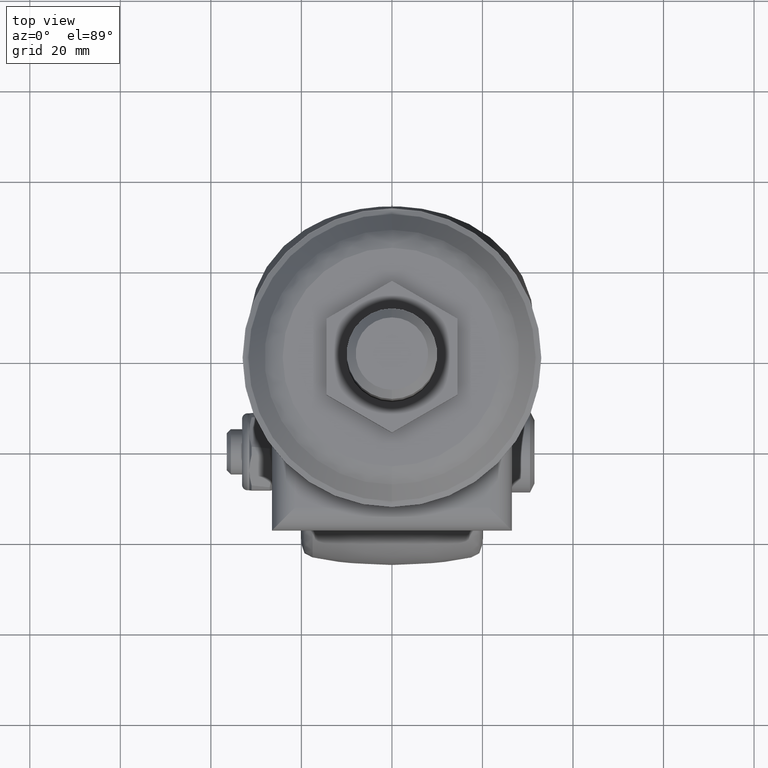
[diagram: clean part render]
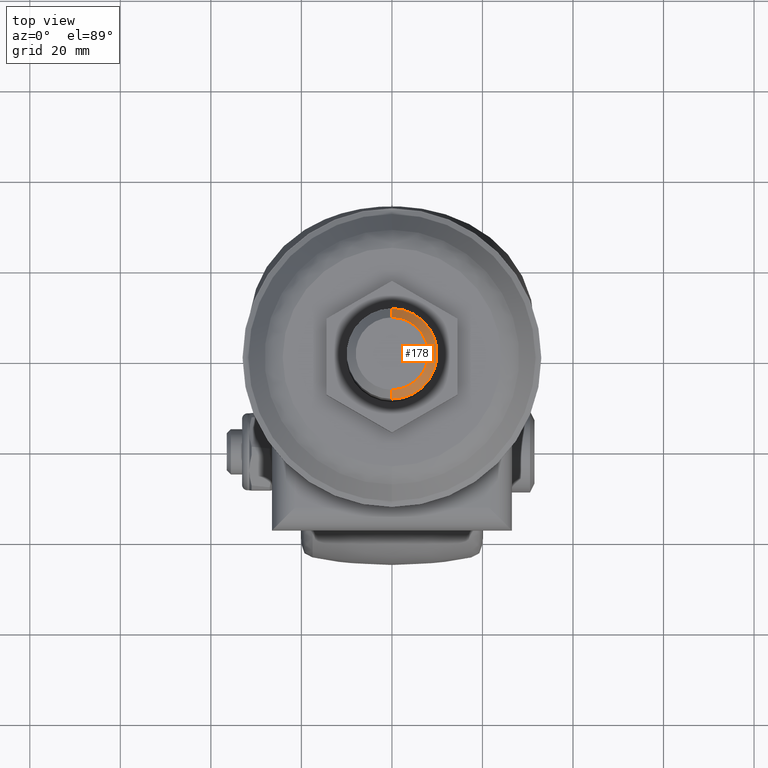
[diagram: same view with one face highlighted and labeled with its STEP entity id]
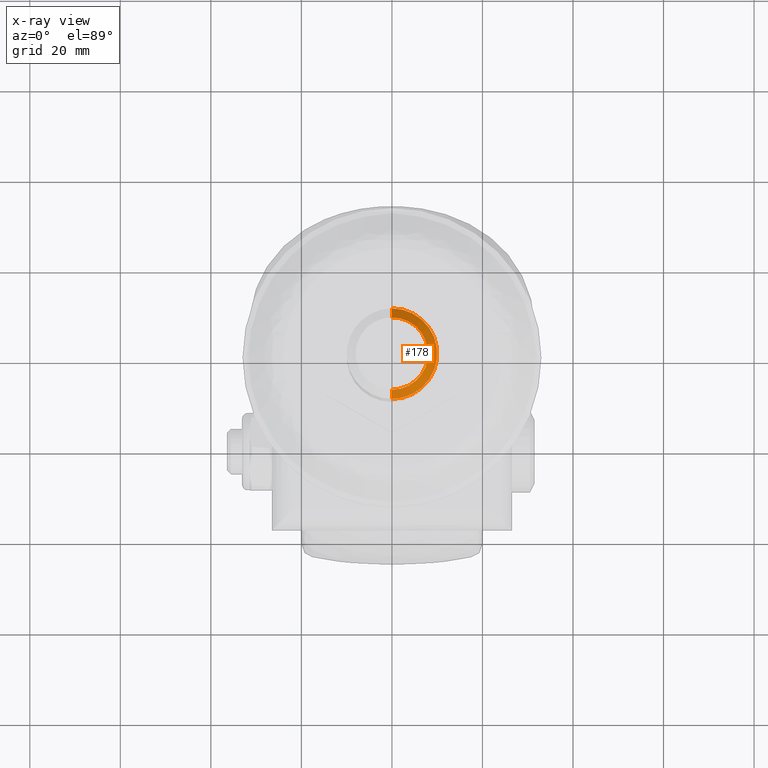
[diagram: x-ray of the same camera — body ghosted, the highlighted face saturated]
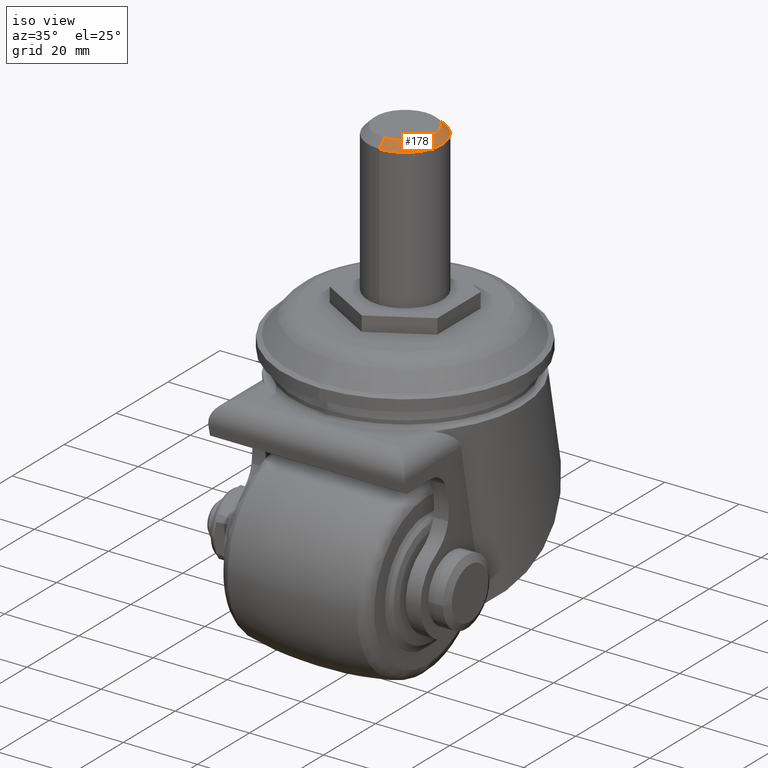
[diagram: same view with one face highlighted and labeled with its STEP entity id]
A machine part, top view. The second image highlights one B-rep face of the part: STEP entity #178.
The next image is the same camera in x-ray: the body ghosted, the highlighted face saturated — about 0% of this face is hidden behind the body in this view.
A second angle (iso view) of the same face is appended — the face is thin or edge-on in the first view.
In plain terms, the highlighted face is a freeform B-spline surface patch.
Its self-contained STEP definition (entity closure, byte-faithful):
#178=ADVANCED_FACE('',(#950),#949,.T.);
#949=( BOUNDED_SURFACE() B_SPLINE_SURFACE( 2,1,((#2363,#2364),(#2365,#2366),(#2367,#2368),(#2369,#2370),(#2371,#2372)), .UNSPECIFIED.,.F.,.F.,.F.) B_SPLINE_SURFACE_WITH_KNOTS((3,2,3),(2,2),(0.00000000000E+00,5.00000000000E-01,1.00000000000E+00),(0.00000000000E+00,1.00000000000E+00), .UNSPECIFIED. ) GEOMETRIC_REPRESENTATION_ITEM() RATIONAL_B_SPLINE_SURFACE(((1.00000000000E+00,1.00000000000E+00),(7.07106781187E-01,7.07106781187E-01),(1.00000000000E+00,1.00000000000E+00),(7.07106781187E-01,7.07106781187E-01),(1.00000000000E+00,1.00000000000E+00))) REPRESENTATION_ITEM('') SURFACE() );
#950=FACE_OUTER_BOUND('',#2373,.T.);
#2363=CARTESIAN_POINT('',(0.00000000000E+00,5.19999871927E+01,-5.23598743740E-05));
#2364=CARTESIAN_POINT('',(1.73191142559E-15,3.78578571778E+01,-1.41421823748E+01));
#2365=CARTESIAN_POINT('',(0.00000000000E+00,5.19999871927E+01,-5.23598743740E-05));
#2366=CARTESIAN_POINT('',(1.41421300149E+01,3.78578571778E+01,-1.41421823748E+01));
#2367=CARTESIAN_POINT('',(0.00000000000E+00,5.19999871927E+01,-5.23598743740E-05));
#2368=CARTESIAN_POINT('',(1.41421300149E+01,3.78578571778E+01,-5.23598743732E-05));
#2369=CARTESIAN_POINT('',(0.00000000000E+00,5.19999871927E+01,-5.23598743740E-05));
#2370=CARTESIAN_POINT('',(1.41421300149E+01,3.78578571778E+01,1.41420776551E+01));
#2371=CARTESIAN_POINT('',(0.00000000000E+00,5.19999871927E+01,-5.23598743740E-05));
#2372=CARTESIAN_POINT('',(0.00000000000E+00,3.78578571778E+01,1.41420776551E+01));
#2373=EDGE_LOOP('',(#3982,#3983,#3984,#3985));
#3982=ORIENTED_EDGE('',*,*,#4396,.F.);
#3983=ORIENTED_EDGE('',*,*,#4582,.T.);
#3984=ORIENTED_EDGE('',*,*,#4584,.T.);
#3985=ORIENTED_EDGE('',*,*,#4583,.F.);
#4396=EDGE_CURVE('',#4767,#4768,#4769,.T.);
#4582=EDGE_CURVE('',#4767,#6008,#6015,.T.);
#4583=EDGE_CURVE('',#4768,#6007,#6021,.T.);
#4584=EDGE_CURVE('',#6008,#6007,#6027,.T.);
#4767=VERTEX_POINT('',#7217);
#4768=VERTEX_POINT('',#7218);
#4769=CIRCLE('',#7222,7.99999203400E+00);
#6007=VERTEX_POINT('',#8389);
#6008=VERTEX_POINT('',#8390);
#6015=(BOUNDED_CURVE() B_SPLINE_CURVE(1,(#8395,#8396),.UNSPECIFIED.,.F.,.F.) B_SPLINE_CURVE_WITH_KNOTS((2,2),(5.65685085952E-01,7.07106782394E-01),.UNSPECIFIED.) CURVE() GEOMETRIC_REPRESENTATION_ITEM() RATIONAL_B_SPLINE_CURVE((1.00000000000E+00,1.00000000000E+00)) REPRESENTATION_ITEM('') );
#6021=(BOUNDED_CURVE() B_SPLINE_CURVE(1,(#8397,#8398),.UNSPECIFIED.,.F.,.F.) B_SPLINE_CURVE_WITH_KNOTS((2,2),(5.65685086019E-01,7.07106781187E-01),.UNSPECIFIED.) CURVE() GEOMETRIC_REPRESENTATION_ITEM() RATIONAL_B_SPLINE_CURVE((7.50000000000E-01,7.50000000000E-01)) REPRESENTATION_ITEM('') );
#6027=CIRCLE('',#8402,9.99999603399E+00);
#7217=CARTESIAN_POINT('',(0.00000000000E+00,4.39999951587E+01,7.99993967413E+00));
#7218=CARTESIAN_POINT('',(8.88178419700E-16,4.39999951587E+01,-8.00004439387E+00));
#7219=CARTESIAN_POINT('',(0.00000000000E+00,4.39999951587E+01,-5.23598743740E-05));
#7220=DIRECTION('',(0.00000000000E+00,1.00000000000E+00,-0.00000000000E+00));
#7221=DIRECTION('',(-1.22460635382E-16,0.00000000000E+00,1.00000000000E+00));
#7222=AXIS2_PLACEMENT_3D('',#7219,#7220,#7221);
#8389=CARTESIAN_POINT('',(5.92118946467E-16,4.19999911587E+01,-1.00000483939E+01));
#8390=CARTESIAN_POINT('',(0.00000000000E+00,4.19999911587E+01,9.99994367411E+00));
#8395=CARTESIAN_POINT('',(-1.95936821484E-15,4.39999951597E+01,7.99993967317E+00));
#8396=CARTESIAN_POINT('',(-2.44921174047E-15,4.19999911416E+01,9.99994369119E+00));
#8397=CARTESIAN_POINT('',(2.34467000016E-15,4.39999951587E+01,-8.00004439387E+00));
#8398=CARTESIAN_POINT('',(2.93083925621E-15,4.19999911587E+01,-1.00000483939E+01));
#8399=CARTESIAN_POINT('',(0.00000000000E+00,4.19999911587E+01,-5.23598743740E-05));
#8400=DIRECTION('',(0.00000000000E+00,1.00000000000E+00,-0.00000000000E+00));
#8401=DIRECTION('',(-1.22460635382E-16,0.00000000000E+00,1.00000000000E+00));
#8402=AXIS2_PLACEMENT_3D('',#8399,#8400,#8401);